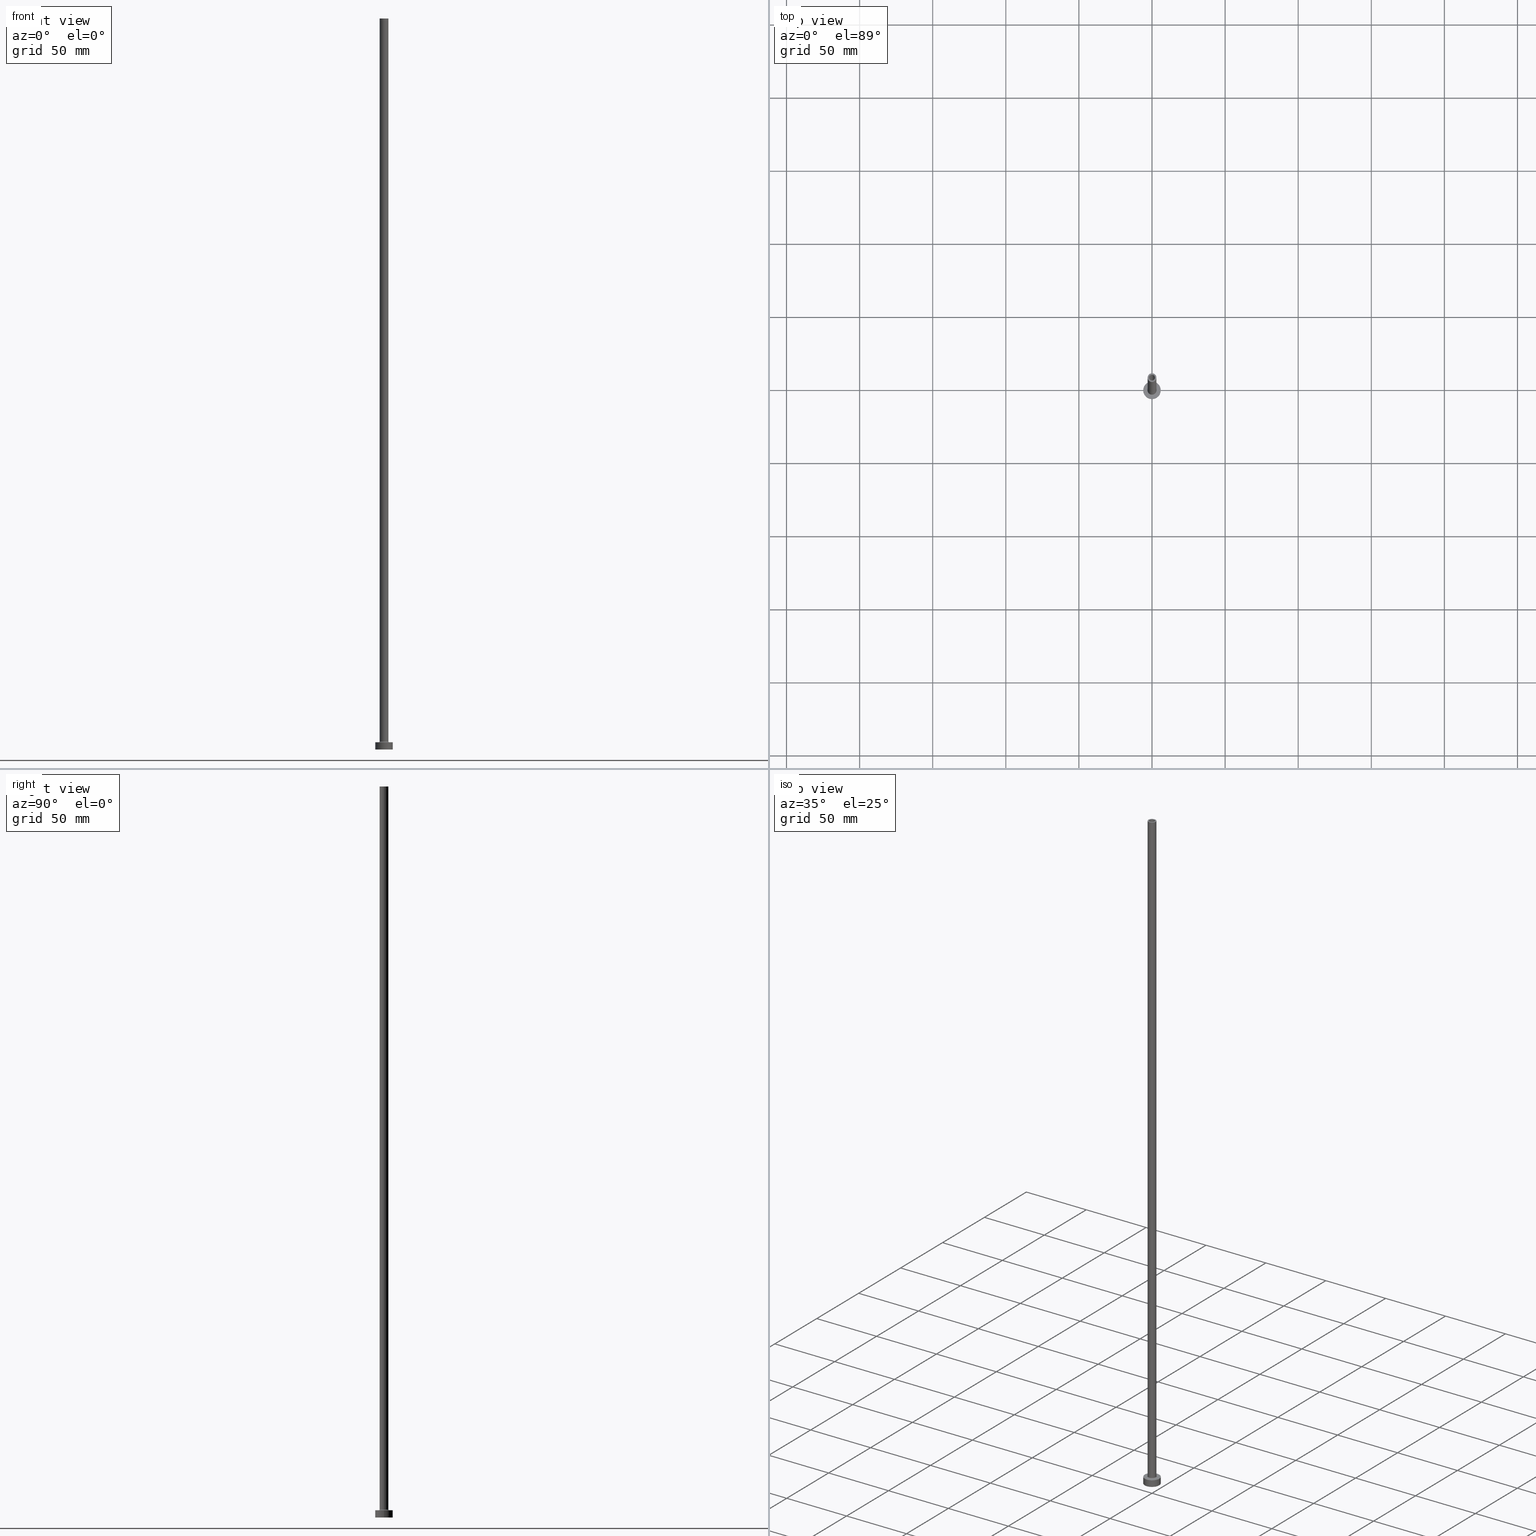
[diagram: canonical four-view strip — front | top / right | iso, engineering-drawing reading convention]
A machine part, canonical four-view strip (front | top / right | iso — engineering-drawing reading convention). The complete STEP part file that produces these views, byte-faithful:
ISO-10303-21;
HEADER;
FILE_DESCRIPTION (( 'STEP AP203' ),
    '1' );
FILE_NAME ('dcb9.STEP',
    '2023-02-13T17:43:22',
    ( '' ),
    ( '' ),
    'SwSTEP 2.0',
    'SolidWorks 2019',
    '' );
FILE_SCHEMA (( 'CONFIG_CONTROL_DESIGN' ));
ENDSEC;

DATA;
#1 = PLANE ( 'NONE',  #205 ) ;
#2 = CLOSED_SHELL ( 'NONE', ( #228, #406, #143, #193, #16, #7, #262, #318, #379, #448, #368, #50, #410, #161 ) ) ;
#3 = CARTESIAN_POINT ( 'NONE',  ( 0.000000000000000000, 0.000000000000000000, 0.000000000000000000 ) ) ;
#4 = CARTESIAN_POINT ( 'NONE',  ( 0.000000000000000000, 0.000000000000000000, 0.000000000000000000 ) ) ;
#5 = AXIS2_PLACEMENT_3D ( 'NONE', #23, #335, #171 ) ;
#6 = EDGE_LOOP ( 'NONE', ( #221, #105, #118, #137 ) ) ;
#7 = ADVANCED_FACE ( 'NONE', ( #266 ), #399, .T. ) ;
#8 = DIRECTION ( 'NONE',  ( -0.000000000000000000, -0.000000000000000000, -1.000000000000000000 ) ) ;
#9 = APPROVAL_ROLE ( '' ) ;
#10 = APPLICATION_CONTEXT ( 'configuration controlled 3d designs of mechanical parts and assemblies' ) ;
#11 = ORIENTED_EDGE ( 'NONE', *, *, #419, .F. ) ;
#12 = FACE_OUTER_BOUND ( 'NONE', #459, .T. ) ;
#13 = AXIS2_PLACEMENT_3D ( 'NONE', #179, #358, #154 ) ;
#14 = CARTESIAN_POINT ( 'NONE',  ( 3.000000000000000444, 3.673940397442060361E-16, 500.0000000000000000 ) ) ;
#15 = ORIENTED_EDGE ( 'NONE', *, *, #460, .T. ) ;
#16 = ADVANCED_FACE ( 'NONE', ( #309 ), #97, .T. ) ;
#17 = AXIS2_PLACEMENT_3D ( 'NONE', #412, #178, #326 ) ;
#18 = AXIS2_PLACEMENT_3D ( 'NONE', #170, #374, #268 ) ;
#19 = DIRECTION ( 'NONE',  ( 0.000000000000000000, 0.000000000000000000, 1.000000000000000000 ) ) ;
#20 = EDGE_LOOP ( 'NONE', ( #361, #367, #340, #452 ) ) ;
#21 = CARTESIAN_POINT ( 'NONE',  ( 3.500000000000000444, 0.000000000000000000, 5.000000000000002665 ) ) ;
#22 = VECTOR ( 'NONE', #8, 1000.000000000000000 ) ;
#23 = CARTESIAN_POINT ( 'NONE',  ( 0.000000000000000000, 0.000000000000000000, 455.0000000000000000 ) ) ;
#24 = VECTOR ( 'NONE', #45, 1000.000000000000000 ) ;
#25 = COORDINATED_UNIVERSAL_TIME_OFFSET ( 1, 0, .AHEAD. ) ;
#26 = ORIENTED_EDGE ( 'NONE', *, *, #390, .F. ) ;
#27 = CC_DESIGN_DATE_AND_TIME_ASSIGNMENT ( #265, #398, ( #96 ) ) ;
#28 = CARTESIAN_POINT ( 'NONE',  ( 2.000000000000000000, 2.449293598294705921E-16, 455.0000000000000000 ) ) ;
#29 = CARTESIAN_POINT ( 'NONE',  ( 0.000000000000000000, 0.000000000000000000, 455.0000000000000000 ) ) ;
#30 = PRODUCT_DEFINITION_SHAPE ( 'NONE', 'NONE',  #338 ) ;
#31 = ORIENTED_EDGE ( 'NONE', *, *, #272, .F. ) ;
#32 = CIRCLE ( 'NONE', #295, 3.000000000000000444 ) ;
#33 = CYLINDRICAL_SURFACE ( 'NONE', #51, 2.000000000000000000 ) ;
#34 = CARTESIAN_POINT ( 'NONE',  ( 6.000000000000000888, 7.347880794884120722E-16, 5.000000000000000000 ) ) ;
#35 = VERTEX_POINT ( 'NONE', #156 ) ;
#36 = EDGE_CURVE ( 'NONE', #370, #98, #420, .T. ) ;
#37 = DIRECTION ( 'NONE',  ( 1.000000000000000000, 0.000000000000000000, -0.000000000000000000 ) ) ;
#38 = ORIENTED_EDGE ( 'NONE', *, *, #231, .F. ) ;
#39 = VECTOR ( 'NONE', #461, 1000.000000000000000 ) ;
#40 = DIRECTION ( 'NONE',  ( -1.000000000000000000, 1.224646799147354440E-16, 0.000000000000000000 ) ) ;
#41 = CIRCLE ( 'NONE', #18, 3.000000000000000444 ) ;
#42 = LOCAL_TIME ( 18, 43, 22.00000000000000000, #85 ) ;
#43 = CARTESIAN_POINT ( 'NONE',  ( -2.149999999999999911, 0.000000000000000000, 461.0811183182043465 ) ) ;
#44 = APPLICATION_CONTEXT ( 'configuration controlled 3d designs of mechanical parts and assemblies' ) ;
#45 = DIRECTION ( 'NONE',  ( -0.000000000000000000, -0.000000000000000000, -1.000000000000000000 ) ) ;
#46 = SECURITY_CLASSIFICATION_LEVEL ( 'unclassified' ) ;
#47 = ORIENTED_EDGE ( 'NONE', *, *, #124, .T. ) ;
#48 = CARTESIAN_POINT ( 'NONE',  ( 0.000000000000000000, 0.000000000000000000, 0.000000000000000000 ) ) ;
#49 = DATE_AND_TIME ( #433, #107 ) ;
#50 = ADVANCED_FACE ( 'NONE', ( #214 ), #319, .F. ) ;
#51 = AXIS2_PLACEMENT_3D ( 'NONE', #209, #286, #421 ) ;
#52 = CIRCLE ( 'NONE', #5, 2.149999999999999911 ) ;
#53 = CC_DESIGN_SECURITY_CLASSIFICATION ( #96, ( #372 ) ) ;
#54 = FACE_OUTER_BOUND ( 'NONE', #303, .T. ) ;
#55 = APPROVAL ( #216, 'NEUR�EN�' ) ;
#56 = ORIENTED_EDGE ( 'NONE', *, *, #155, .T. ) ;
#57 = CARTESIAN_POINT ( 'NONE',  ( 0.000000000000000000, 0.000000000000000000, 500.0000000000000000 ) ) ;
#58 = CARTESIAN_POINT ( 'NONE',  ( 0.000000000000000000, 0.000000000000000000, 500.0000000000000000 ) ) ;
#59 = CIRCLE ( 'NONE', #177, 6.000000000000000888 ) ;
#60 = DIRECTION ( 'NONE',  ( 1.000000000000000000, 0.000000000000000000, 0.000000000000000000 ) ) ;
#61 = DIRECTION ( 'NONE',  ( -1.000000000000000000, 0.000000000000000000, 0.000000000000000000 ) ) ;
#62 = CARTESIAN_POINT ( 'NONE',  ( 0.000000000000000000, 0.000000000000000000, 5.000000000000000000 ) ) ;
#63 = ORIENTED_EDGE ( 'NONE', *, *, #236, .T. ) ;
#64 = EDGE_CURVE ( 'NONE', #294, #425, #223, .T. ) ;
#65 = VERTEX_POINT ( 'NONE', #280 ) ;
#66 = CIRCLE ( 'NONE', #363, 0.5000000000000004441 ) ;
#67 =( NAMED_UNIT ( * ) SI_UNIT ( $, .STERADIAN. ) SOLID_ANGLE_UNIT ( ) );
#68 = CARTESIAN_POINT ( 'NONE',  ( 0.000000000000000000, 0.000000000000000000, 455.0000000000000000 ) ) ;
#69 = ORIENTED_EDGE ( 'NONE', *, *, #441, .T. ) ;
#70 = DIRECTION ( 'NONE',  ( 0.000000000000000000, 0.000000000000000000, 1.000000000000000000 ) ) ;
#71 = EDGE_CURVE ( 'NONE', #134, #417, #289, .T. ) ;
#72 = CIRCLE ( 'NONE', #248, 2.149999999999999911 ) ;
#73 = DIRECTION ( 'NONE',  ( 0.000000000000000000, 0.000000000000000000, 1.000000000000000000 ) ) ;
#74 = ORIENTED_EDGE ( 'NONE', *, *, #460, .F. ) ;
#75 = CARTESIAN_POINT ( 'NONE',  ( -3.500000000000000444, 4.286263797015737088E-16, 5.500000000000005329 ) ) ;
#76 = ORIENTED_EDGE ( 'NONE', *, *, #272, .T. ) ;
#77 = AXIS2_PLACEMENT_3D ( 'NONE', #353, #160, #418 ) ;
#78 = DIRECTION ( 'NONE',  ( 1.000000000000000000, 0.000000000000000000, 0.000000000000000000 ) ) ;
#79 =( NAMED_UNIT ( * ) PLANE_ANGLE_UNIT ( ) SI_UNIT ( $, .RADIAN. ) );
#80 = DIRECTION ( 'NONE',  ( 0.000000000000000000, 0.000000000000000000, 1.000000000000000000 ) ) ;
#81 = EDGE_LOOP ( 'NONE', ( #285, #307 ) ) ;
#82 = DIRECTION ( 'NONE',  ( 1.000000000000000000, 0.000000000000000000, 0.000000000000000000 ) ) ;
#83 = COORDINATED_UNIVERSAL_TIME_OFFSET ( 1, 0, .AHEAD. ) ;
#84 = VERTEX_POINT ( 'NONE', #382 ) ;
#85 = COORDINATED_UNIVERSAL_TIME_OFFSET ( 1, 0, .AHEAD. ) ;
#86 = PRODUCT_RELATED_PRODUCT_CATEGORY ( 'detail', '', ( #194 ) ) ;
#87 = DATE_AND_TIME ( #222, #42 ) ;
#88 = AXIS2_PLACEMENT_3D ( 'NONE', #300, #19, #234 ) ;
#89 = ORIENTED_EDGE ( 'NONE', *, *, #316, .F. ) ;
#90 = EDGE_CURVE ( 'NONE', #35, #370, #32, .T. ) ;
#91 = PERSON_AND_ORGANIZATION ( #362, #182 ) ;
#92 = FACE_OUTER_BOUND ( 'NONE', #20, .T. ) ;
#93 = EDGE_LOOP ( 'NONE', ( #282, #328, #347, #437 ) ) ;
#94 = CARTESIAN_POINT ( 'NONE',  ( 0.000000000000000000, 0.000000000000000000, 0.000000000000000000 ) ) ;
#95 = CIRCLE ( 'NONE', #341, 2.000000000000000000 ) ;
#96 = SECURITY_CLASSIFICATION ( '', '', #46 ) ;
#97 = CYLINDRICAL_SURFACE ( 'NONE', #17, 6.000000000000000888 ) ;
#98 = VERTEX_POINT ( 'NONE', #386 ) ;
#99 = EDGE_CURVE ( 'NONE', #247, #429, #186, .T. ) ;
#100 = LINE ( 'NONE', #102, #242 ) ;
#101 = APPROVAL_DATE_TIME ( #200, #359 ) ;
#102 = CARTESIAN_POINT ( 'NONE',  ( 2.149999999999999911, 2.632990618166809235E-16, 461.0811183182043465 ) ) ;
#103 = PERSON_AND_ORGANIZATION ( #362, #182 ) ;
#104 = TOROIDAL_SURFACE ( 'NONE', #77, 3.500000000000000444, 0.5000000000000000000 ) ;
#105 = ORIENTED_EDGE ( 'NONE', *, *, #252, .F. ) ;
#106 = PLANE ( 'NONE',  #415 ) ;
#107 = LOCAL_TIME ( 18, 43, 22.00000000000000000, #195 ) ;
#108 = CARTESIAN_POINT ( 'NONE',  ( 0.000000000000000000, 0.000000000000000000, 5.000000000000000000 ) ) ;
#109 = FACE_OUTER_BOUND ( 'NONE', #447, .T. ) ;
#110 = ORIENTED_EDGE ( 'NONE', *, *, #373, .F. ) ;
#111 = CARTESIAN_POINT ( 'NONE',  ( 0.000000000000000000, 0.000000000000000000, 5.500000000000005329 ) ) ;
#112 = ORIENTED_EDGE ( 'NONE', *, *, #390, .T. ) ;
#113 = DIRECTION ( 'NONE',  ( 1.000000000000000000, 0.000000000000000000, 0.000000000000000000 ) ) ;
#114 = AXIS2_PLACEMENT_3D ( 'NONE', #292, #391, #387 ) ;
#115 = DIRECTION ( 'NONE',  ( 0.000000000000000000, 0.000000000000000000, 1.000000000000000000 ) ) ;
#116 = EDGE_LOOP ( 'NONE', ( #162, #298, #343, #345 ) ) ;
#117 = CARTESIAN_POINT ( 'NONE',  ( -6.000000000000000888, 0.000000000000000000, 5.000000000000000000 ) ) ;
#118 = ORIENTED_EDGE ( 'NONE', *, *, #71, .T. ) ;
#119 = FACE_OUTER_BOUND ( 'NONE', #388, .T. ) ;
#120 = PERSON_AND_ORGANIZATION ( #362, #182 ) ;
#121 = EDGE_LOOP ( 'NONE', ( #446, #38 ) ) ;
#122 = AXIS2_PLACEMENT_3D ( 'NONE', #75, #283, #40 ) ;
#123 = PERSON_AND_ORGANIZATION ( #362, #182 ) ;
#124 = EDGE_CURVE ( 'NONE', #175, #128, #212, .T. ) ;
#125 = FACE_OUTER_BOUND ( 'NONE', #93, .T. ) ;
#126 = ORIENTED_EDGE ( 'NONE', *, *, #151, .T. ) ;
#127 = APPLICATION_PROTOCOL_DEFINITION ( 'international standard', 'config_control_design', 1994, #10 ) ;
#128 = VERTEX_POINT ( 'NONE', #149 ) ;
#129 = PERSON_AND_ORGANIZATION ( #362, #182 ) ;
#130 = AXIS2_PLACEMENT_3D ( 'NONE', #235, #369, #233 ) ;
#131 = DIRECTION ( 'NONE',  ( -1.000000000000000000, 0.000000000000000000, 0.000000000000000000 ) ) ;
#132 = CALENDAR_DATE ( 2023, 13, 2 ) ;
#133 = CARTESIAN_POINT ( 'NONE',  ( -3.000000000000000444, 0.000000000000000000, 5.500000000000005329 ) ) ;
#134 = VERTEX_POINT ( 'NONE', #117 ) ;
#135 = AXIS2_PLACEMENT_3D ( 'NONE', #165, #305, #302 ) ;
#136 = CARTESIAN_POINT ( 'NONE',  ( 2.000000000000000000, 2.449293598294705921E-16, 500.0000000000000000 ) ) ;
#137 = ORIENTED_EDGE ( 'NONE', *, *, #431, .T. ) ;
#138 = CC_DESIGN_DATE_AND_TIME_ASSIGNMENT ( #49, #304, ( #338 ) ) ;
#139 = CYLINDRICAL_SURFACE ( 'NONE', #191, 3.000000000000000444 ) ;
#140 = FACE_BOUND ( 'NONE', #238, .T. ) ;
#141 = SHAPE_DEFINITION_REPRESENTATION ( #30, #284 ) ;
#142 = CARTESIAN_POINT ( 'NONE',  ( 0.000000000000000000, 0.000000000000000000, 0.000000000000000000 ) ) ;
#143 = ADVANCED_FACE ( 'NONE', ( #350 ), #104, .F. ) ;
#144 = CIRCLE ( 'NONE', #434, 2.000000000000000000 ) ;
#145 = ORIENTED_EDGE ( 'NONE', *, *, #90, .T. ) ;
#146 = VECTOR ( 'NONE', #411, 1000.000000000000000 ) ;
#147 = EDGE_CURVE ( 'NONE', #190, #35, #383, .T. ) ;
#148 = CARTESIAN_POINT ( 'NONE',  ( 0.000000000000000000, 0.000000000000000000, 461.0811183182043465 ) ) ;
#149 = CARTESIAN_POINT ( 'NONE',  ( -2.000000000000000000, 0.000000000000000000, 455.0000000000000000 ) ) ;
#150 = ORIENTED_EDGE ( 'NONE', *, *, #252, .T. ) ;
#151 = EDGE_CURVE ( 'NONE', #84, #175, #144, .T. ) ;
#152 = LINE ( 'NONE', #43, #453 ) ;
#153 = ORIENTED_EDGE ( 'NONE', *, *, #392, .T. ) ;
#154 = DIRECTION ( 'NONE',  ( -1.000000000000000000, 0.000000000000000000, 0.000000000000000000 ) ) ;
#155 = EDGE_CURVE ( 'NONE', #65, #294, #152, .T. ) ;
#156 = CARTESIAN_POINT ( 'NONE',  ( 3.000000000000000444, 3.673940397442060361E-16, 5.500000000000005329 ) ) ;
#157 = CIRCLE ( 'NONE', #114, 2.000000000000000000 ) ;
#158 = DIRECTION ( 'NONE',  ( 0.000000000000000000, 0.000000000000000000, 1.000000000000000000 ) ) ;
#159 = VERTEX_POINT ( 'NONE', #180 ) ;
#160 = DIRECTION ( 'NONE',  ( 0.000000000000000000, 0.000000000000000000, 1.000000000000000000 ) ) ;
#161 = ADVANCED_FACE ( 'NONE', ( #109 ), #33, .F. ) ;
#162 = ORIENTED_EDGE ( 'NONE', *, *, #441, .F. ) ;
#163 = LOCAL_TIME ( 18, 43, 22.00000000000000000, #83 ) ;
#164 = ORIENTED_EDGE ( 'NONE', *, *, #308, .T. ) ;
#165 = CARTESIAN_POINT ( 'NONE',  ( 0.000000000000000000, 0.000000000000000000, 500.0000000000000000 ) ) ;
#166 = CIRCLE ( 'NONE', #393, 6.000000000000000888 ) ;
#167 = CARTESIAN_POINT ( 'NONE',  ( 3.500000000000000444, 0.000000000000000000, 5.500000000000005329 ) ) ;
#168 = PLANE ( 'NONE',  #458 ) ;
#169 = EDGE_LOOP ( 'NONE', ( #211, #244 ) ) ;
#170 = CARTESIAN_POINT ( 'NONE',  ( 0.000000000000000000, 0.000000000000000000, 500.0000000000000000 ) ) ;
#171 = DIRECTION ( 'NONE',  ( 1.000000000000000000, 0.000000000000000000, 0.000000000000000000 ) ) ;
#172 = AXIS2_PLACEMENT_3D ( 'NONE', #48, #427, #255 ) ;
#173 = FACE_BOUND ( 'NONE', #444, .T. ) ;
#174 = CC_DESIGN_PERSON_AND_ORGANIZATION_ASSIGNMENT ( #188, #396, ( #96 ) ) ;
#175 = VERTEX_POINT ( 'NONE', #249 ) ;
#176 = DESIGN_CONTEXT ( 'detailed design', #10, 'design' ) ;
#177 = AXIS2_PLACEMENT_3D ( 'NONE', #189, #250, #82 ) ;
#178 = DIRECTION ( 'NONE',  ( -0.000000000000000000, -0.000000000000000000, -1.000000000000000000 ) ) ;
#179 = CARTESIAN_POINT ( 'NONE',  ( 0.000000000000000000, 0.000000000000000000, 461.0811183182043465 ) ) ;
#180 = CARTESIAN_POINT ( 'NONE',  ( 2.149999999999999911, 2.632990618166809235E-16, 455.0000000000000000 ) ) ;
#181 = CARTESIAN_POINT ( 'NONE',  ( 2.149999999999999911, 2.632990618166809235E-16, 0.000000000000000000 ) ) ;
#182 = ORGANIZATION ( 'NEUR�EN�', 'NEUR�EN�', '' ) ;
#183 = CARTESIAN_POINT ( 'NONE',  ( 0.000000000000000000, 0.000000000000000000, 500.0000000000000000 ) ) ;
#184 = EDGE_LOOP ( 'NONE', ( #240, #251, #315, #227 ) ) ;
#185 = EDGE_CURVE ( 'NONE', #175, #84, #95, .T. ) ;
#186 = LINE ( 'NONE', #34, #22 ) ;
#187 = DIRECTION ( 'NONE',  ( 1.000000000000000000, 0.000000000000000000, -0.000000000000000000 ) ) ;
#188 = PERSON_AND_ORGANIZATION ( #362, #182 ) ;
#189 = CARTESIAN_POINT ( 'NONE',  ( 0.000000000000000000, 0.000000000000000000, 5.000000000000000000 ) ) ;
#190 = VERTEX_POINT ( 'NONE', #14 ) ;
#191 = AXIS2_PLACEMENT_3D ( 'NONE', #274, #409, #377 ) ;
#192 = PERSON_AND_ORGANIZATION ( #362, #182 ) ;
#193 = ADVANCED_FACE ( 'NONE', ( #54 ), #259, .T. ) ;
#194 = PRODUCT ( 'dcb9', 'dcb9', '', ( #206 ) ) ;
#195 = COORDINATED_UNIVERSAL_TIME_OFFSET ( 1, 0, .AHEAD. ) ;
#196 = EDGE_LOOP ( 'NONE', ( #89, #76, #56, #402 ) ) ;
#197 = AXIS2_PLACEMENT_3D ( 'NONE', #327, #80, #217 ) ;
#198 = EDGE_CURVE ( 'NONE', #98, #263, #400, .T. ) ;
#199 = DIRECTION ( 'NONE',  ( 0.000000000000000000, 0.000000000000000000, 1.000000000000000000 ) ) ;
#200 = DATE_AND_TIME ( #132, #208 ) ;
#201 = CARTESIAN_POINT ( 'NONE',  ( 6.000000000000000888, 7.347880794884120722E-16, 5.000000000000000000 ) ) ;
#202 = EDGE_CURVE ( 'NONE', #128, #267, #378, .T. ) ;
#203 = ORIENTED_EDGE ( 'NONE', *, *, #198, .T. ) ;
#204 = MANIFOLD_SOLID_BREP ( 'Odebrat vysunut�m4', #2 ) ;
#205 = AXIS2_PLACEMENT_3D ( 'NONE', #183, #115, #37 ) ;
#206 = MECHANICAL_CONTEXT ( 'NONE', #44, 'mechanical' ) ;
#207 = DIRECTION ( 'NONE',  ( -1.000000000000000000, 0.000000000000000000, 0.000000000000000000 ) ) ;
#208 = LOCAL_TIME ( 18, 43, 22.00000000000000000, #25 ) ;
#209 = CARTESIAN_POINT ( 'NONE',  ( 0.000000000000000000, 0.000000000000000000, 500.0000000000000000 ) ) ;
#210 = DIRECTION ( 'NONE',  ( -0.000000000000000000, -0.000000000000000000, -1.000000000000000000 ) ) ;
#211 = ORIENTED_EDGE ( 'NONE', *, *, #202, .T. ) ;
#212 = LINE ( 'NONE', #246, #277 ) ;
#213 = CARTESIAN_POINT ( 'NONE',  ( 6.000000000000000888, 7.347880794884120722E-16, 0.000000000000000000 ) ) ;
#214 = FACE_OUTER_BOUND ( 'NONE', #196, .T. ) ;
#215 = DIRECTION ( 'NONE',  ( 0.000000000000000000, 0.000000000000000000, 1.000000000000000000 ) ) ;
#216 = APPROVAL_STATUS ( 'not_yet_approved' ) ;
#217 = DIRECTION ( 'NONE',  ( 1.000000000000000000, 0.000000000000000000, 0.000000000000000000 ) ) ;
#218 = ORIENTED_EDGE ( 'NONE', *, *, #336, .F. ) ;
#219 = CARTESIAN_POINT ( 'NONE',  ( -6.000000000000000888, 0.000000000000000000, 0.000000000000000000 ) ) ;
#220 = COORDINATED_UNIVERSAL_TIME_OFFSET ( 1, 0, .AHEAD. ) ;
#221 = ORIENTED_EDGE ( 'NONE', *, *, #99, .F. ) ;
#222 = CALENDAR_DATE ( 2023, 13, 2 ) ;
#223 = CIRCLE ( 'NONE', #229, 2.149999999999999911 ) ;
#224 = CARTESIAN_POINT ( 'NONE',  ( 0.000000000000000000, 0.000000000000000000, 5.000000000000000000 ) ) ;
#225 = CIRCLE ( 'NONE', #270, 2.149999999999999911 ) ;
#226 = FACE_OUTER_BOUND ( 'NONE', #422, .T. ) ;
#227 = ORIENTED_EDGE ( 'NONE', *, *, #155, .F. ) ;
#228 = ADVANCED_FACE ( 'NONE', ( #125 ), #366, .F. ) ;
#229 = AXIS2_PLACEMENT_3D ( 'NONE', #3, #389, #325 ) ;
#230 = LOCAL_TIME ( 18, 43, 22.00000000000000000, #220 ) ;
#231 = EDGE_CURVE ( 'NONE', #429, #417, #334, .T. ) ;
#232 = CC_DESIGN_APPROVAL ( #359, ( #96 ) ) ;
#233 = DIRECTION ( 'NONE',  ( 1.000000000000000000, 0.000000000000000000, 0.000000000000000000 ) ) ;
#234 = DIRECTION ( 'NONE',  ( 1.000000000000000000, 0.000000000000000000, 0.000000000000000000 ) ) ;
#235 = CARTESIAN_POINT ( 'NONE',  ( 0.000000000000000000, 0.000000000000000000, 5.500000000000005329 ) ) ;
#236 = EDGE_CURVE ( 'NONE', #344, #190, #41, .T. ) ;
#237 = DIRECTION ( 'NONE',  ( 0.000000000000000000, 0.000000000000000000, -1.000000000000000000 ) ) ;
#238 = EDGE_LOOP ( 'NONE', ( #164, #203 ) ) ;
#239 = EDGE_CURVE ( 'NONE', #425, #294, #225, .T. ) ;
#240 = ORIENTED_EDGE ( 'NONE', *, *, #336, .T. ) ;
#241 = AXIS2_PLACEMENT_3D ( 'NONE', #58, #215, #423 ) ;
#242 = VECTOR ( 'NONE', #237, 1000.000000000000000 ) ;
#243 = DIRECTION ( 'NONE',  ( 1.000000000000000000, 0.000000000000000000, 0.000000000000000000 ) ) ;
#244 = ORIENTED_EDGE ( 'NONE', *, *, #419, .T. ) ;
#245 = CARTESIAN_POINT ( 'NONE',  ( 3.000000000000000444, 3.673940397442060361E-16, 500.0000000000000000 ) ) ;
#246 = CARTESIAN_POINT ( 'NONE',  ( -2.000000000000000000, 0.000000000000000000, 500.0000000000000000 ) ) ;
#247 = VERTEX_POINT ( 'NONE', #201 ) ;
#248 = AXIS2_PLACEMENT_3D ( 'NONE', #68, #310, #243 ) ;
#249 = CARTESIAN_POINT ( 'NONE',  ( -2.000000000000000000, 0.000000000000000000, 500.0000000000000000 ) ) ;
#250 = DIRECTION ( 'NONE',  ( 0.000000000000000000, 0.000000000000000000, 1.000000000000000000 ) ) ;
#251 = ORIENTED_EDGE ( 'NONE', *, *, #316, .T. ) ;
#252 = EDGE_CURVE ( 'NONE', #134, #247, #166, .T. ) ;
#253 = DIRECTION ( 'NONE',  ( 1.000000000000000000, 0.000000000000000000, 0.000000000000000000 ) ) ;
#254 = ORIENTED_EDGE ( 'NONE', *, *, #64, .F. ) ;
#255 = DIRECTION ( 'NONE',  ( 1.000000000000000000, 0.000000000000000000, 0.000000000000000000 ) ) ;
#256 = PERSON_AND_ORGANIZATION_ROLE ( 'design_supplier' ) ;
#257 = EDGE_LOOP ( 'NONE', ( #150, #69 ) ) ;
#258 = CIRCLE ( 'NONE', #172, 6.000000000000000888 ) ;
#259 = CYLINDRICAL_SURFACE ( 'NONE', #135, 3.000000000000000444 ) ;
#260 = CARTESIAN_POINT ( 'NONE',  ( -3.000000000000000444, 0.000000000000000000, 500.0000000000000000 ) ) ;
#261 = PERSON_AND_ORGANIZATION_ROLE ( 'creator' ) ;
#262 = ADVANCED_FACE ( 'NONE', ( #140, #337 ), #168, .T. ) ;
#263 = VERTEX_POINT ( 'NONE', #21 ) ;
#264 = APPROVAL_STATUS ( 'not_yet_approved' ) ;
#265 = DATE_AND_TIME ( #330, #163 ) ;
#266 = FACE_OUTER_BOUND ( 'NONE', #6, .T. ) ;
#267 = VERTEX_POINT ( 'NONE', #28 ) ;
#268 = DIRECTION ( 'NONE',  ( 1.000000000000000000, 0.000000000000000000, 0.000000000000000000 ) ) ;
#269 = DIRECTION ( 'NONE',  ( 1.000000000000000000, 0.000000000000000000, 0.000000000000000000 ) ) ;
#270 = AXIS2_PLACEMENT_3D ( 'NONE', #94, #371, #60 ) ;
#271 = ORIENTED_EDGE ( 'NONE', *, *, #147, .F. ) ;
#272 = EDGE_CURVE ( 'NONE', #159, #65, #72, .T. ) ;
#273 = CARTESIAN_POINT ( 'NONE',  ( -2.149999999999999911, 0.000000000000000000, 0.000000000000000000 ) ) ;
#274 = CARTESIAN_POINT ( 'NONE',  ( 0.000000000000000000, 0.000000000000000000, 500.0000000000000000 ) ) ;
#275 = CARTESIAN_POINT ( 'NONE',  ( 0.000000000000000000, 0.000000000000000000, 5.000000000000000000 ) ) ;
#276 = CARTESIAN_POINT ( 'NONE',  ( 0.000000000000000000, 0.000000000000000000, 5.500000000000005329 ) ) ;
#277 = VECTOR ( 'NONE', #346, 1000.000000000000000 ) ;
#278 = DIRECTION ( 'NONE',  ( 0.000000000000000000, 0.000000000000000000, 1.000000000000000000 ) ) ;
#279 = CIRCLE ( 'NONE', #352, 3.000000000000000444 ) ;
#280 = CARTESIAN_POINT ( 'NONE',  ( -2.149999999999999911, 0.000000000000000000, 455.0000000000000000 ) ) ;
#281 = EDGE_CURVE ( 'NONE', #84, #267, #454, .T. ) ;
#282 = ORIENTED_EDGE ( 'NONE', *, *, #185, .T. ) ;
#283 = DIRECTION ( 'NONE',  ( 1.224646799147353207E-16, 1.000000000000000000, -0.000000000000000000 ) ) ;
#284 = ADVANCED_BREP_SHAPE_REPRESENTATION ( 'dcb9', ( #204, #324 ), #317 ) ;
#285 = ORIENTED_EDGE ( 'NONE', *, *, #185, .F. ) ;
#286 = DIRECTION ( 'NONE',  ( 0.000000000000000000, 0.000000000000000000, -1.000000000000000000 ) ) ;
#287 = DIRECTION ( 'NONE',  ( 0.000000000000000000, 0.000000000000000000, 1.000000000000000000 ) ) ;
#288 = AXIS2_PLACEMENT_3D ( 'NONE', #394, #443, #436 ) ;
#289 = LINE ( 'NONE', #426, #39 ) ;
#290 = CYLINDRICAL_SURFACE ( 'NONE', #13, 2.149999999999999911 ) ;
#291 = DIRECTION ( 'NONE',  ( 0.000000000000000000, 0.000000000000000000, 1.000000000000000000 ) ) ;
#292 = CARTESIAN_POINT ( 'NONE',  ( 0.000000000000000000, 0.000000000000000000, 455.0000000000000000 ) ) ;
#293 = DATE_AND_TIME ( #403, #230 ) ;
#294 = VERTEX_POINT ( 'NONE', #273 ) ;
#295 = AXIS2_PLACEMENT_3D ( 'NONE', #111, #291, #113 ) ;
#296 = DIRECTION ( 'NONE',  ( 1.000000000000000000, 0.000000000000000000, 0.000000000000000000 ) ) ;
#297 = CC_DESIGN_APPROVAL ( #55, ( #372 ) ) ;
#298 = ORIENTED_EDGE ( 'NONE', *, *, #99, .T. ) ;
#299 = PERSON_AND_ORGANIZATION_ROLE ( 'creator' ) ;
#300 = CARTESIAN_POINT ( 'NONE',  ( 0.000000000000000000, 0.000000000000000000, 0.000000000000000000 ) ) ;
#301 = APPROVAL ( #264, 'NEUR�EN�' ) ;
#302 = DIRECTION ( 'NONE',  ( -1.000000000000000000, 0.000000000000000000, 0.000000000000000000 ) ) ;
#303 = EDGE_LOOP ( 'NONE', ( #26, #440, #145, #74 ) ) ;
#304 = DATE_TIME_ROLE ( 'creation_date' ) ;
#305 = DIRECTION ( 'NONE',  ( -0.000000000000000000, -0.000000000000000000, -1.000000000000000000 ) ) ;
#306 = CC_DESIGN_APPROVAL ( #301, ( #338 ) ) ;
#307 = ORIENTED_EDGE ( 'NONE', *, *, #151, .F. ) ;
#308 = EDGE_CURVE ( 'NONE', #263, #98, #384, .T. ) ;
#309 = FACE_OUTER_BOUND ( 'NONE', #116, .T. ) ;
#310 = DIRECTION ( 'NONE',  ( 0.000000000000000000, 0.000000000000000000, 1.000000000000000000 ) ) ;
#311 = AXIS2_PLACEMENT_3D ( 'NONE', #57, #439, #131 ) ;
#312 = CC_DESIGN_PERSON_AND_ORGANIZATION_ASSIGNMENT ( #91, #299, ( #338 ) ) ;
#313 = APPROVAL_ROLE ( '' ) ;
#314 = DIRECTION ( 'NONE',  ( -0.000000000000000000, -0.000000000000000000, -1.000000000000000000 ) ) ;
#315 = ORIENTED_EDGE ( 'NONE', *, *, #239, .T. ) ;
#316 = EDGE_CURVE ( 'NONE', #159, #425, #100, .T. ) ;
#317 =( GEOMETRIC_REPRESENTATION_CONTEXT ( 3 ) GLOBAL_UNCERTAINTY_ASSIGNED_CONTEXT ( ( #321 ) ) GLOBAL_UNIT_ASSIGNED_CONTEXT ( ( #395, #79, #67 ) ) REPRESENTATION_CONTEXT ( 'NONE', 'WORKASPACE' ) );
#318 = ADVANCED_FACE ( 'NONE', ( #173, #456 ), #376, .F. ) ;
#319 = CYLINDRICAL_SURFACE ( 'NONE', #430, 2.149999999999999911 ) ;
#320 = ORIENTED_EDGE ( 'NONE', *, *, #392, .F. ) ;
#321 = UNCERTAINTY_MEASURE_WITH_UNIT (LENGTH_MEASURE( 1.000000000000000082E-05 ), #395, 'distance_accuracy_value', 'NONE');
#322 = LINE ( 'NONE', #260, #24 ) ;
#323 = DIRECTION ( 'NONE',  ( 0.000000000000000000, 0.000000000000000000, -1.000000000000000000 ) ) ;
#324 = AXIS2_PLACEMENT_3D ( 'NONE', #4, #158, #296 ) ;
#325 = DIRECTION ( 'NONE',  ( 1.000000000000000000, 0.000000000000000000, 0.000000000000000000 ) ) ;
#326 = DIRECTION ( 'NONE',  ( -1.000000000000000000, 0.000000000000000000, 0.000000000000000000 ) ) ;
#327 = CARTESIAN_POINT ( 'NONE',  ( 0.000000000000000000, 0.000000000000000000, 455.0000000000000000 ) ) ;
#328 = ORIENTED_EDGE ( 'NONE', *, *, #281, .T. ) ;
#329 = FACE_BOUND ( 'NONE', #81, .T. ) ;
#330 = CALENDAR_DATE ( 2023, 13, 2 ) ;
#331 = ORIENTED_EDGE ( 'NONE', *, *, #308, .F. ) ;
#332 = PERSON_AND_ORGANIZATION ( #362, #182 ) ;
#333 = VECTOR ( 'NONE', #210, 1000.000000000000000 ) ;
#334 = CIRCLE ( 'NONE', #88, 6.000000000000000888 ) ;
#335 = DIRECTION ( 'NONE',  ( 0.000000000000000000, 0.000000000000000000, 1.000000000000000000 ) ) ;
#336 = EDGE_CURVE ( 'NONE', #65, #159, #52, .T. ) ;
#337 = FACE_OUTER_BOUND ( 'NONE', #257, .T. ) ;
#338 = PRODUCT_DEFINITION ( 'NEZN�M�', '', #372, #176 ) ;
#339 = APPROVAL_STATUS ( 'not_yet_approved' ) ;
#340 = ORIENTED_EDGE ( 'NONE', *, *, #373, .T. ) ;
#341 = AXIS2_PLACEMENT_3D ( 'NONE', #385, #73, #348 ) ;
#342 = TOROIDAL_SURFACE ( 'NONE', #130, 3.500000000000000444, 0.5000000000000000000 ) ;
#343 = ORIENTED_EDGE ( 'NONE', *, *, #231, .T. ) ;
#344 = VERTEX_POINT ( 'NONE', #404 ) ;
#345 = ORIENTED_EDGE ( 'NONE', *, *, #71, .F. ) ;
#346 = DIRECTION ( 'NONE',  ( 0.000000000000000000, 0.000000000000000000, -1.000000000000000000 ) ) ;
#347 = ORIENTED_EDGE ( 'NONE', *, *, #202, .F. ) ;
#348 = DIRECTION ( 'NONE',  ( 1.000000000000000000, 0.000000000000000000, 0.000000000000000000 ) ) ;
#349 = FACE_OUTER_BOUND ( 'NONE', #184, .T. ) ;
#350 = FACE_OUTER_BOUND ( 'NONE', #405, .T. ) ;
#351 = ORIENTED_EDGE ( 'NONE', *, *, #281, .F. ) ;
#352 = AXIS2_PLACEMENT_3D ( 'NONE', #276, #413, #253 ) ;
#353 = CARTESIAN_POINT ( 'NONE',  ( 0.000000000000000000, 0.000000000000000000, 5.500000000000005329 ) ) ;
#354 = FACE_BOUND ( 'NONE', #169, .T. ) ;
#355 = APPROVAL_DATE_TIME ( #293, #55 ) ;
#356 = CC_DESIGN_PERSON_AND_ORGANIZATION_ASSIGNMENT ( #192, #438, ( #194 ) ) ;
#357 = ORIENTED_EDGE ( 'NONE', *, *, #239, .F. ) ;
#358 = DIRECTION ( 'NONE',  ( 0.000000000000000000, 0.000000000000000000, -1.000000000000000000 ) ) ;
#359 = APPROVAL ( #339, 'NEUR�EN�' ) ;
#360 = AXIS2_PLACEMENT_3D ( 'NONE', #224, #364, #61 ) ;
#361 = ORIENTED_EDGE ( 'NONE', *, *, #36, .F. ) ;
#362 = PERSON ( 'NEUR�EN�', 'NEUR�EN�', 'NEUR�EN�', ('NEUR�EN�'), ('NEUR�EN�'), ('NEUR�EN�') ) ;
#363 = AXIS2_PLACEMENT_3D ( 'NONE', #167, #449, #375 ) ;
#364 = DIRECTION ( 'NONE',  ( -0.000000000000000000, -0.000000000000000000, -1.000000000000000000 ) ) ;
#365 = APPROVAL_DATE_TIME ( #87, #301 ) ;
#366 = CYLINDRICAL_SURFACE ( 'NONE', #311, 2.000000000000000000 ) ;
#367 = ORIENTED_EDGE ( 'NONE', *, *, #90, .F. ) ;
#368 = ADVANCED_FACE ( 'NONE', ( #92 ), #342, .F. ) ;
#369 = DIRECTION ( 'NONE',  ( 0.000000000000000000, 0.000000000000000000, 1.000000000000000000 ) ) ;
#370 = VERTEX_POINT ( 'NONE', #133 ) ;
#371 = DIRECTION ( 'NONE',  ( -0.000000000000000000, -0.000000000000000000, -1.000000000000000000 ) ) ;
#372 = PRODUCT_DEFINITION_FORMATION_WITH_SPECIFIED_SOURCE ( 'LIBOVOLN�', '', #194, .NOT_KNOWN. ) ;
#373 = EDGE_CURVE ( 'NONE', #35, #263, #66, .T. ) ;
#374 = DIRECTION ( 'NONE',  ( 0.000000000000000000, 0.000000000000000000, 1.000000000000000000 ) ) ;
#375 = DIRECTION ( 'NONE',  ( 0.000000000000000000, 0.000000000000000000, -1.000000000000000000 ) ) ;
#376 = PLANE ( 'NONE',  #401 ) ;
#377 = DIRECTION ( 'NONE',  ( -1.000000000000000000, 0.000000000000000000, 0.000000000000000000 ) ) ;
#378 = CIRCLE ( 'NONE', #197, 2.000000000000000000 ) ;
#379 = ADVANCED_FACE ( 'NONE', ( #226 ), #139, .T. ) ;
#380 = ORIENTED_EDGE ( 'NONE', *, *, #236, .F. ) ;
#381 = DIRECTION ( 'NONE',  ( 1.000000000000000000, 0.000000000000000000, -0.000000000000000000 ) ) ;
#382 = CARTESIAN_POINT ( 'NONE',  ( 2.000000000000000000, 2.449293598294705921E-16, 500.0000000000000000 ) ) ;
#383 = LINE ( 'NONE', #245, #333 ) ;
#384 = CIRCLE ( 'NONE', #424, 3.500000000000000444 ) ;
#385 = CARTESIAN_POINT ( 'NONE',  ( 0.000000000000000000, 0.000000000000000000, 500.0000000000000000 ) ) ;
#386 = CARTESIAN_POINT ( 'NONE',  ( -3.500000000000000444, 4.286263797015737088E-16, 5.000000000000002665 ) ) ;
#387 = DIRECTION ( 'NONE',  ( 1.000000000000000000, 0.000000000000000000, 0.000000000000000000 ) ) ;
#388 = EDGE_LOOP ( 'NONE', ( #218, #31 ) ) ;
#389 = DIRECTION ( 'NONE',  ( -0.000000000000000000, -0.000000000000000000, -1.000000000000000000 ) ) ;
#390 = EDGE_CURVE ( 'NONE', #190, #344, #455, .T. ) ;
#391 = DIRECTION ( 'NONE',  ( 0.000000000000000000, 0.000000000000000000, 1.000000000000000000 ) ) ;
#392 = EDGE_CURVE ( 'NONE', #370, #35, #279, .T. ) ;
#393 = AXIS2_PLACEMENT_3D ( 'NONE', #62, #199, #269 ) ;
#394 = CARTESIAN_POINT ( 'NONE',  ( 0.000000000000000000, 0.000000000000000000, 5.000000000000000000 ) ) ;
#395 =( LENGTH_UNIT ( ) NAMED_UNIT ( * ) SI_UNIT ( .MILLI., .METRE. ) );
#396 = PERSON_AND_ORGANIZATION_ROLE ( 'classification_officer' ) ;
#397 = APPROVAL_ROLE ( '' ) ;
#398 = DATE_TIME_ROLE ( 'classification_date' ) ;
#399 = CYLINDRICAL_SURFACE ( 'NONE', #360, 6.000000000000000888 ) ;
#400 = CIRCLE ( 'NONE', #288, 3.500000000000000444 ) ;
#401 = AXIS2_PLACEMENT_3D ( 'NONE', #142, #278, #414 ) ;
#402 = ORIENTED_EDGE ( 'NONE', *, *, #64, .T. ) ;
#403 = CALENDAR_DATE ( 2023, 13, 2 ) ;
#404 = CARTESIAN_POINT ( 'NONE',  ( -3.000000000000000444, 0.000000000000000000, 500.0000000000000000 ) ) ;
#405 = EDGE_LOOP ( 'NONE', ( #320, #457, #331, #110 ) ) ;
#406 = ADVANCED_FACE ( 'NONE', ( #349 ), #290, .F. ) ;
#407 = APPROVAL_PERSON_ORGANIZATION ( #103, #359, #313 ) ;
#408 = DIRECTION ( 'NONE',  ( 1.000000000000000000, 0.000000000000000000, 0.000000000000000000 ) ) ;
#409 = DIRECTION ( 'NONE',  ( -0.000000000000000000, -0.000000000000000000, -1.000000000000000000 ) ) ;
#410 = ADVANCED_FACE ( 'NONE', ( #354, #119 ), #106, .F. ) ;
#411 = DIRECTION ( 'NONE',  ( 0.000000000000000000, 0.000000000000000000, -1.000000000000000000 ) ) ;
#412 = CARTESIAN_POINT ( 'NONE',  ( 0.000000000000000000, 0.000000000000000000, 5.000000000000000000 ) ) ;
#413 = DIRECTION ( 'NONE',  ( 0.000000000000000000, 0.000000000000000000, 1.000000000000000000 ) ) ;
#414 = DIRECTION ( 'NONE',  ( 1.000000000000000000, 0.000000000000000000, -0.000000000000000000 ) ) ;
#415 = AXIS2_PLACEMENT_3D ( 'NONE', #29, #287, #187 ) ;
#416 = DIRECTION ( 'NONE',  ( 0.000000000000000000, 0.000000000000000000, -1.000000000000000000 ) ) ;
#417 = VERTEX_POINT ( 'NONE', #219 ) ;
#418 = DIRECTION ( 'NONE',  ( 1.000000000000000000, 0.000000000000000000, 0.000000000000000000 ) ) ;
#419 = EDGE_CURVE ( 'NONE', #267, #128, #157, .T. ) ;
#420 = CIRCLE ( 'NONE', #122, 0.4999999999999995559 ) ;
#421 = DIRECTION ( 'NONE',  ( -1.000000000000000000, 0.000000000000000000, 0.000000000000000000 ) ) ;
#422 = EDGE_LOOP ( 'NONE', ( #271, #380, #15, #153 ) ) ;
#423 = DIRECTION ( 'NONE',  ( 1.000000000000000000, 0.000000000000000000, 0.000000000000000000 ) ) ;
#424 = AXIS2_PLACEMENT_3D ( 'NONE', #108, #314, #408 ) ;
#425 = VERTEX_POINT ( 'NONE', #181 ) ;
#426 = CARTESIAN_POINT ( 'NONE',  ( -6.000000000000000888, 0.000000000000000000, 5.000000000000000000 ) ) ;
#427 = DIRECTION ( 'NONE',  ( 0.000000000000000000, 0.000000000000000000, 1.000000000000000000 ) ) ;
#428 = CARTESIAN_POINT ( 'NONE',  ( 0.000000000000000000, 0.000000000000000000, 500.0000000000000000 ) ) ;
#429 = VERTEX_POINT ( 'NONE', #213 ) ;
#430 = AXIS2_PLACEMENT_3D ( 'NONE', #148, #323, #207 ) ;
#431 = EDGE_CURVE ( 'NONE', #417, #429, #258, .T. ) ;
#432 = APPLICATION_PROTOCOL_DEFINITION ( 'international standard', 'config_control_design', 1994, #44 ) ;
#433 = CALENDAR_DATE ( 2023, 13, 2 ) ;
#434 = AXIS2_PLACEMENT_3D ( 'NONE', #428, #70, #78 ) ;
#435 = APPROVAL_PERSON_ORGANIZATION ( #129, #55, #9 ) ;
#436 = DIRECTION ( 'NONE',  ( 1.000000000000000000, 0.000000000000000000, 0.000000000000000000 ) ) ;
#437 = ORIENTED_EDGE ( 'NONE', *, *, #124, .F. ) ;
#438 = PERSON_AND_ORGANIZATION_ROLE ( 'design_owner' ) ;
#439 = DIRECTION ( 'NONE',  ( 0.000000000000000000, 0.000000000000000000, -1.000000000000000000 ) ) ;
#440 = ORIENTED_EDGE ( 'NONE', *, *, #147, .T. ) ;
#441 = EDGE_CURVE ( 'NONE', #247, #134, #59, .T. ) ;
#442 = CC_DESIGN_PERSON_AND_ORGANIZATION_ASSIGNMENT ( #120, #256, ( #372 ) ) ;
#443 = DIRECTION ( 'NONE',  ( -0.000000000000000000, -0.000000000000000000, -1.000000000000000000 ) ) ;
#444 = EDGE_LOOP ( 'NONE', ( #254, #357 ) ) ;
#445 = APPROVAL_PERSON_ORGANIZATION ( #332, #301, #397 ) ;
#446 = ORIENTED_EDGE ( 'NONE', *, *, #431, .F. ) ;
#447 = EDGE_LOOP ( 'NONE', ( #351, #126, #47, #11 ) ) ;
#448 = ADVANCED_FACE ( 'NONE', ( #329, #12 ), #1, .T. ) ;
#449 = DIRECTION ( 'NONE',  ( 0.000000000000000000, -1.000000000000000000, 0.000000000000000000 ) ) ;
#450 = DIRECTION ( 'NONE',  ( 0.000000000000000000, 0.000000000000000000, 1.000000000000000000 ) ) ;
#451 = CC_DESIGN_PERSON_AND_ORGANIZATION_ASSIGNMENT ( #123, #261, ( #372 ) ) ;
#452 = ORIENTED_EDGE ( 'NONE', *, *, #198, .F. ) ;
#453 = VECTOR ( 'NONE', #416, 1000.000000000000000 ) ;
#454 = LINE ( 'NONE', #136, #146 ) ;
#455 = CIRCLE ( 'NONE', #241, 3.000000000000000444 ) ;
#456 = FACE_OUTER_BOUND ( 'NONE', #121, .T. ) ;
#457 = ORIENTED_EDGE ( 'NONE', *, *, #36, .T. ) ;
#458 = AXIS2_PLACEMENT_3D ( 'NONE', #275, #450, #381 ) ;
#459 = EDGE_LOOP ( 'NONE', ( #63, #112 ) ) ;
#460 = EDGE_CURVE ( 'NONE', #344, #370, #322, .T. ) ;
#461 = DIRECTION ( 'NONE',  ( -0.000000000000000000, -0.000000000000000000, -1.000000000000000000 ) ) ;
ENDSEC;
END-ISO-10303-21;
